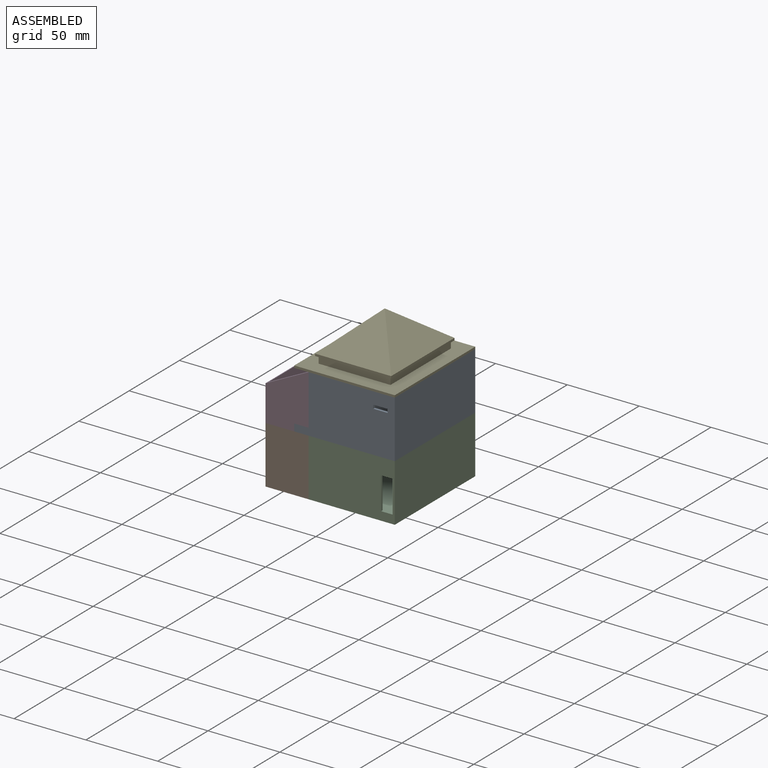
[diagram: assembled view]
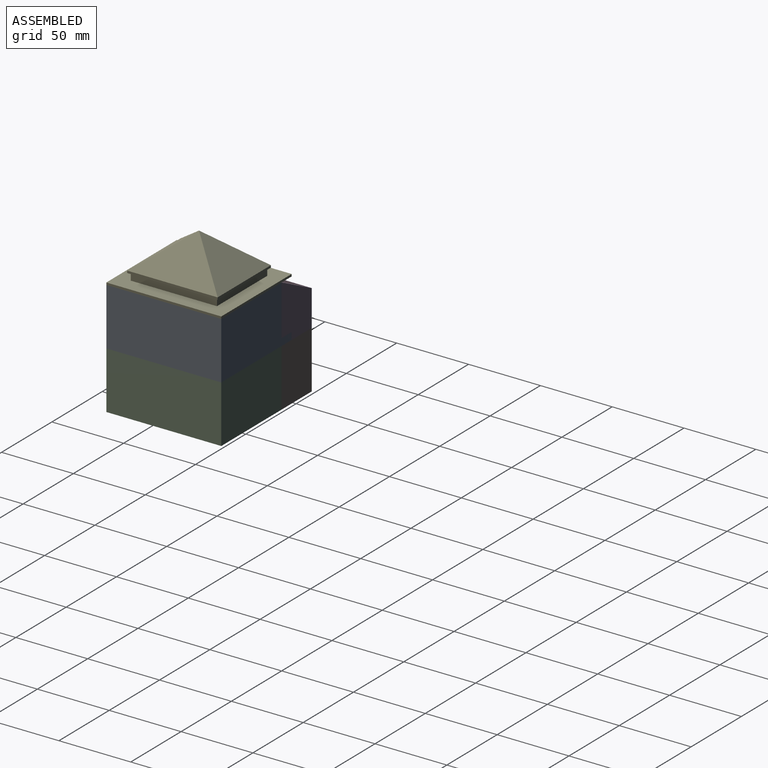
[diagram: assembled view, second angle]
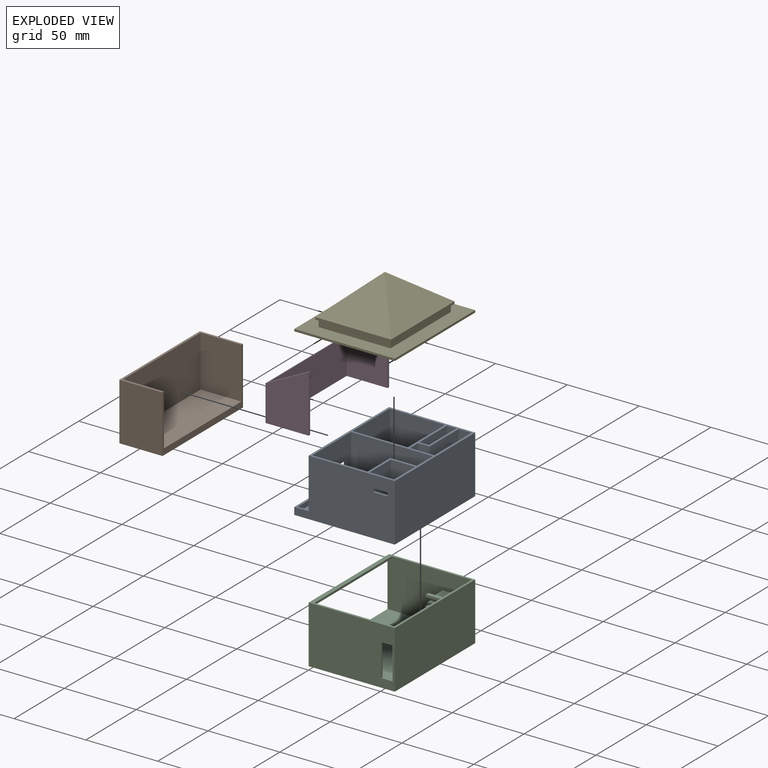
[diagram: exploded view]
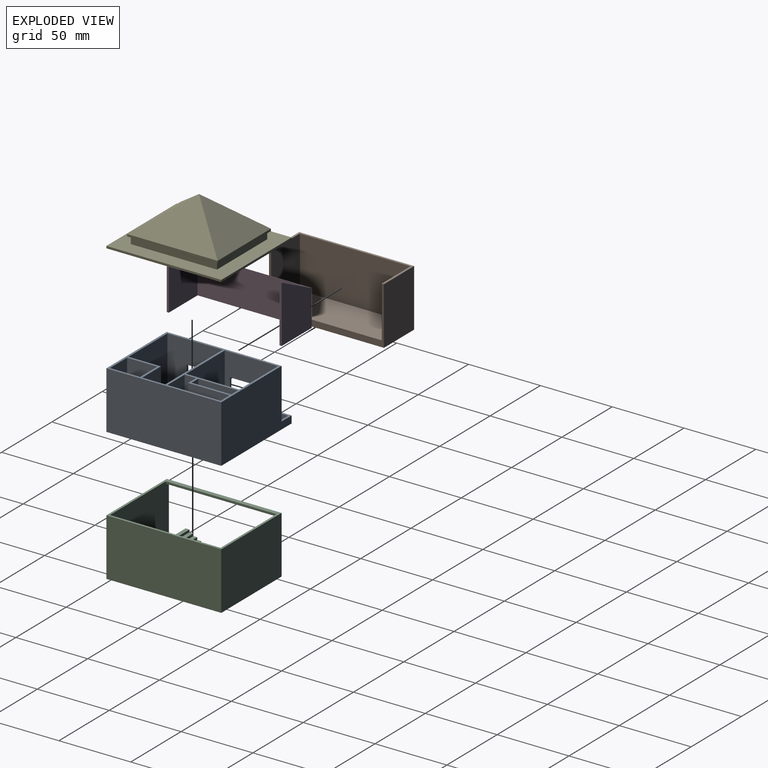
[diagram: exploded view, second angle]
ASSEMBLY  parts=5 mates=4
PART A: 60 faces, bbox 70x80x40 mm
  f0: plane 8.5x3.5mm, normal (0,1,0), area 29.8mm2, adj f2,f56,f57,f59
  f1: plane 8.5x3.5mm, normal (0,-1,0), area 29.8mm2, adj f2,f56,f57,f59
  f2: plane 80x38.5mm, normal (-1,0,0), area 2309.5mm2, adj f0,f1,f9,f19,f21,f41,f42,f43
  f3: plane 27.5x16mm, normal (1,0,0), area 440mm2, adj f5,f19,f30,f36
  f4: plane 40x17mm, normal (0,-1,0), area 440mm2, adj f6,f13,f19,f26,f53,f54
  f5: plane 28.5x8mm, normal (0,1,0), area 204mm2, adj f3,f15,f19,f36,f37,f55
  f6: plane 27.5x10mm, normal (1,0,0), area 275mm2, adj f4,f7,f13,f54
  f7: plane 10x8mm, normal (0,1,0), area 80mm2, adj f6,f13,f53,f54
  f8: plane 16x8mm, normal (1,0,0), area 128mm2, adj f16,f19,f38,f39
  f9: plane 70x40mm, normal (0,-1,0), area 2425mm2, adj f2,f13,f19,f20,f49,f50,f51,f52
  f10: plane 38.5x17mm, normal (0,1,0), area 629.5mm2, adj f19,f27,f28,f31,f49,f50,f51,f52
  f11: plane 38.5x38.5mm, normal (1,0,0), area 1102.2mm2, adj f17,f19,f22,f31,f45,f46,f47,f48
  f12: plane 38.5x37mm, normal (1,0,0), area 1044.5mm2, adj f19,f29,f30,f31,f41,f42,f43,f44
  f13: plane 80x70mm, normal (0,0,-1), area 5119mm2, adj f4,f6,f7,f9,f20,f21,f26,f40
  f14: plane 22.5x1.5mm, normal (1,0,0), area 33.8mm2, adj f17,f29,f31,f34
  f15: plane 38.5x37mm, normal (-1,0,0), area 900.7mm2, adj f5,f19,f29,f30,f31,f36,f37,f38
  f16: plane 38.5x17mm, normal (0,1,0), area 474.5mm2, adj f8,f19,f26,f31,f34,f35
  f17: plane 57x38.5mm, normal (0,-1,0), area 2014.5mm2, adj f11,f14,f19,f25,f31,f34,f35
  f18: plane 38.5x17mm, normal (0,-1,0), area 474.5mm2, adj f19,f27,f28,f31,f32,f33
  f19: plane 80x60mm, normal (0,0,1), area 664.5mm2, adj f2,f3,f4,f5,f8,f9,f10,f11
  f20: plane 80x40mm, normal (1,0,0), area 3200mm2, adj f9,f13,f19,f21
  f21: plane 70x40mm, normal (0,1,0), area 2450mm2, adj f2,f13,f19,f20,f56,f58
  f22: plane 38.5x38.5mm, normal (0,1,0), area 1482.2mm2, adj f11,f19,f23,f31
  f23: plane 38.5x22.5mm, normal (-1,0,0), area 866.2mm2, adj f19,f22,f24,f31
  f24: plane 38.5x18.5mm, normal (0,1,0), area 532.3mm2, adj f19,f23,f25,f27,f31,f32,f33
  f25: plane 38.5x16mm, normal (-1,0,0), area 616mm2, adj f17,f19,f24,f31
  f26: plane 40x37mm, normal (-1,0,0), area 1468mm2, adj f4,f13,f16,f19,f31,f40
  f27: plane 38.5x22.5mm, normal (1,0,0), area 842.2mm2, adj f10,f18,f19,f24,f31,f32
  f28: plane 38.5x21mm, normal (-1,0,0), area 808.5mm2, adj f10,f18,f19,f31
  f29: plane 40x38.5mm, normal (0,1,0), area 1516mm2, adj f12,f14,f15,f19,f31,f38
  f30: plane 46.5x38.5mm, normal (0,-1,0), area 1686.2mm2, adj f3,f12,f15,f19,f31,f36,f37,f55
  f31: plane 77x57mm, normal (0,0,1), area 3731.7mm2, adj f10,f11,f12,f14,f15,f16,f17,f18
  f32: plane 8x1.5mm, normal (0,0,-1), area 12mm2, adj f18,f24,f27,f33
  f33: plane 22.5x1.5mm, normal (-1,0,0), area 33.8mm2, adj f18,f24,f31,f32
  f34: plane 8x1.5mm, normal (0,0,-1), area 12mm2, adj f14,f16,f17,f35
  f35: plane 22.5x1.5mm, normal (-1,0,0), area 33.8mm2, adj f16,f17,f31,f34
  f36: plane 27.5x1.5mm, normal (0,0,-1), area 41.3mm2, adj f3,f5,f15,f30
  f37: plane 27.5x8mm, normal (0,0,1), area 220mm2, adj f5,f15,f30,f55
  f38: plane 8x1.5mm, normal (0,0,-1), area 12mm2, adj f8,f15,f29,f39
  f39: plane 38.5x9.5mm, normal (0,-1,0), area 341.8mm2, adj f8,f15,f19,f31,f38,f53
  f40: plane 9x1.5mm, normal (0,1,0), area 13.5mm2, adj f13,f26,f31,f53
  f41: plane 20x1.5mm, normal (0,0,-1), area 30mm2, adj f2,f12,f42,f44
  f42: plane 19x1.5mm, normal (0,-1,0), area 28.5mm2, adj f2,f12,f41,f43
  f43: plane 20x1.5mm, normal (0,0,1), area 30mm2, adj f2,f12,f42,f44
  f44: plane 19x1.5mm, normal (0,1,0), area 28.5mm2, adj f2,f12,f41,f43
  f45: plane 20x1.5mm, normal (0,0,-1), area 30mm2, adj f2,f11,f46,f48
  f46: plane 19x1.5mm, normal (0,-1,0), area 28.5mm2, adj f2,f11,f45,f47
  f47: plane 20x1.5mm, normal (0,0,1), area 30mm2, adj f2,f11,f46,f48
  f48: plane 19x1.5mm, normal (0,1,0), area 28.5mm2, adj f2,f11,f45,f47
  f49: plane 10x1.5mm, normal (0,0,-1), area 15mm2, adj f9,f10,f50,f52
  f50: plane 2.5x1.5mm, normal (1,0,0), area 3.7mm2, adj f9,f10,f49,f51
  f51: plane 10x1.5mm, normal (0,0,1), area 15mm2, adj f9,f10,f50,f52
  f52: plane 2.5x1.5mm, normal (-1,0,0), area 3.7mm2, adj f9,f10,f49,f51
  f53: plane 40x29mm, normal (1,0,0), area 885mm2, adj f4,f7,f13,f19,f39,f40,f54
  f54: plane 27.5x8mm, normal (0,0,-1), area 220mm2, adj f4,f6,f7,f53
  f55: plane 28.5x27.5mm, normal (-1,0,0), area 783.8mm2, adj f5,f19,f30,f37
  f56: plane 80x10mm, normal (0,0,1), area 145.5mm2, adj f0,f1,f2,f9,f21,f58,f59
  f57: plane 77x8.5mm, normal (0,0,1), area 654.5mm2, adj f0,f1,f2,f59
  f58: plane 80x5mm, normal (-1,0,0), area 400mm2, adj f9,f13,f21,f56
  f59: plane 77x3.5mm, normal (1,0,0), area 269.5mm2, adj f0,f1,f56,f57
PART B: 10 faces, bbox 30x80x40 mm
  f0: plane 77x28.5mm, normal (0,0,1), area 2194.5mm2, adj f2,f6,f7,f8
  f1: plane 40x30mm, normal (0,-1,0), area 1200mm2, adj f2,f4,f5,f9
  f2: plane 80x40mm, normal (1,0,0), area 451.1mm2, adj f0,f1,f3,f5,f6,f7,f9
  f3: plane 40x30mm, normal (0,1,0), area 1200mm2, adj f2,f4,f5,f9
  f4: plane 80x40mm, normal (-1,0,0), area 3200mm2, adj f1,f3,f5,f9
  f5: plane 80x30mm, normal (0,0,-1), area 2400mm2, adj f1,f2,f3,f4
  f6: plane 35.7x28.5mm, normal (0,-1,0), area 1017.4mm2, adj f0,f2,f8,f9
  f7: plane 35.7x28.5mm, normal (0,1,0), area 1017.4mm2, adj f0,f2,f8,f9
  f8: plane 77x35.7mm, normal (1,0,0), area 2748.9mm2, adj f0,f6,f7,f9
  f9: plane 80x30mm, normal (0,0,1), area 205.5mm2, adj f1,f2,f3,f4,f6,f7,f8
PART C: 61 faces, bbox 60x80x40 mm
  f0: plane 60x40mm, normal (0,-1,0), area 2220mm2, adj f6,f7,f9,f10,f11,f12,f59,f60
  f1: plane 20x12.5mm, normal (0,0,-1), area 223mm2, adj f3,f11,f16,f32,f33,f34
  f2: plane 18.9x13.6mm, normal (-1,0,0), area 48.2mm2, adj f9,f16,f17,f18,f19,f20,f21,f22
  f3: plane 58.5x34mm, normal (0,-1,0), area 1950.5mm2, adj f1,f4,f6,f9,f11,f12,f13,f14
  f4: plane 28.7x11.9mm, normal (-1,0,0), area 245.1mm2, adj f3,f9,f15,f18,f19,f20,f21,f22
  f5: plane 58.5x34mm, normal (0,1,0), area 1804.5mm2, adj f6,f9,f11,f12,f13,f14,f59,f60
  f6: plane 80x40mm, normal (-1,0,0), area 697.5mm2, adj f0,f3,f5,f8,f9,f10,f12,f13
  f7: plane 80x40mm, normal (1,0,0), area 3200mm2, adj f0,f8,f9,f10
  f8: plane 60x40mm, normal (0,1,0), area 2400mm2, adj f6,f7,f9,f10
  f9: plane 80x60mm, normal (0,0,1), area 553.5mm2, adj f0,f2,f3,f4,f5,f6,f7,f8
  f10: plane 80x60mm, normal (0,0,-1), area 4800mm2, adj f0,f6,f7,f8
  f11: plane 78.5x34mm, normal (-1,0,0), area 2337.2mm2, adj f0,f1,f3,f5,f9,f12,f16,f17
  f12: plane 78.5x58.5mm, normal (0,0,1), area 4489.5mm2, adj f0,f3,f5,f6,f11,f32,f33,f34
  f13: plane 77x3mm, normal (0,0,-1), area 231mm2, adj f3,f5,f6,f14
  f14: plane 77x1.5mm, normal (1,0,0), area 115.5mm2, adj f3,f5,f9,f13
  f15: plane 20x12.5mm, normal (0,0,1), area 250mm2, adj f3,f4,f30,f31,f32
  f16: plane 18.9x11.9mm, normal (0,-0.53,-0.85), area 223.3mm2, adj f1,f2,f11,f17
  f17: plane 10x1.7mm, normal (0,-1,0), area 17mm2, adj f2,f9,f11,f16
  f18: plane 10x1.7mm, normal (0,1,0), area 17mm2, adj f2,f4,f9,f19
  f19: plane 10x2.7mm, normal (0,0,1), area 27mm2, adj f2,f4,f18,f20
  f20: plane 10x1.7mm, normal (0,1,0), area 17mm2, adj f2,f4,f19,f21
  f21: plane 10x2.7mm, normal (0,0,1), area 27mm2, adj f2,f4,f20,f22
  f22: plane 10x1.7mm, normal (0,1,0), area 17mm2, adj f2,f4,f21,f23
  f23: plane 10x2.7mm, normal (0,0,1), area 27mm2, adj f2,f4,f22,f24
  f24: plane 10x1.7mm, normal (0,1,0), area 17mm2, adj f2,f4,f23,f25
  f25: plane 10x2.7mm, normal (0,0,1), area 27mm2, adj f2,f4,f24,f26
  f26: plane 10x1.7mm, normal (0,1,0), area 17mm2, adj f2,f4,f25,f27
  f27: plane 10x2.7mm, normal (0,0,1), area 27mm2, adj f2,f4,f26,f28
  f28: plane 10x1.7mm, normal (0,1,0), area 17mm2, adj f2,f4,f27,f29
  f29: plane 10x2.7mm, normal (0,0,1), area 27mm2, adj f2,f4,f28,f30
  f30: plane 10x1.7mm, normal (0,1,0), area 17mm2, adj f2,f4,f15,f29
  f31: plane 10x1.7mm, normal (0,-1,0), area 17mm2, adj f2,f15,f32,f56
  f32: plane 44.9x22.1mm, normal (-1,0,0), area 103.9mm2, adj f1,f3,f12,f15,f31,f34,f35,f36
  f33: plane 35.1x20.4mm, normal (1,0,0), area 82.6mm2, adj f1,f12,f34,f35,f36,f37,f38,f39
  f34: plane 32.4x20.4mm, normal (0,0.53,-0.85), area 382.9mm2, adj f1,f12,f32,f33
  f35: plane 10x1.7mm, normal (0,-1,0), area 17mm2, adj f12,f32,f33,f36
  f36: plane 10x2.7mm, normal (0,0,1), area 27mm2, adj f32,f33,f35,f37
  f37: plane 10x1.7mm, normal (0,-1,0), area 17mm2, adj f32,f33,f36,f38
  f38: plane 10x2.7mm, normal (0,0,1), area 27mm2, adj f32,f33,f37,f39
  f39: plane 10x1.7mm, normal (0,-1,0), area 17mm2, adj f32,f33,f38,f40
  f40: plane 10x2.7mm, normal (0,0,1), area 27mm2, adj f32,f33,f39,f41
  f41: plane 10x1.7mm, normal (0,-1,0), area 17mm2, adj f32,f33,f40,f42
  f42: plane 10x2.7mm, normal (0,0,1), area 27mm2, adj f32,f33,f41,f43
  f43: plane 10x1.7mm, normal (0,-1,0), area 17mm2, adj f32,f33,f42,f44
  f44: plane 10x2.7mm, normal (0,0,1), area 27mm2, adj f32,f33,f43,f45
  f45: plane 10x1.7mm, normal (0,-1,0), area 17mm2, adj f32,f33,f44,f46
  f46: plane 10x2.7mm, normal (0,0,1), area 27mm2, adj f32,f33,f45,f47
  f47: plane 10x1.7mm, normal (0,-1,0), area 17mm2, adj f32,f33,f46,f48
  f48: plane 10x2.7mm, normal (0,0,1), area 27mm2, adj f32,f33,f47,f49
  f49: plane 10x1.7mm, normal (0,-1,0), area 17mm2, adj f32,f33,f48,f50
  f50: plane 10x2.7mm, normal (0,0,1), area 27mm2, adj f32,f33,f49,f51
  f51: plane 10x1.7mm, normal (0,-1,0), area 17mm2, adj f32,f33,f50,f52
  f52: plane 10x2.7mm, normal (0,0,1), area 27mm2, adj f32,f33,f51,f53
  f53: plane 10x1.7mm, normal (0,-1,0), area 17mm2, adj f32,f33,f52,f54
  f54: plane 10x2.7mm, normal (0,0,1), area 27mm2, adj f32,f33,f53,f55
  f55: plane 10x1.7mm, normal (0,-1,0), area 17mm2, adj f32,f33,f54,f57
  f56: plane 10x2.7mm, normal (0,0,1), area 27mm2, adj f31,f32,f33,f58
  f57: plane 10x2.7mm, normal (0,0,1), area 27mm2, adj f32,f33,f55,f58
  f58: plane 10x1.7mm, normal (0,-1,0), area 17mm2, adj f32,f33,f56,f57
  f59: plane 8x1.5mm, normal (0,0,-1), area 12mm2, adj f0,f5,f11,f60
  f60: plane 22.5x1.5mm, normal (1,0,0), area 33.8mm2, adj f0,f5,f12,f59
PART D: 10 faces, bbox 30x80x40 mm
  f0: plane 40x30mm, normal (0,-1,0), area 975mm2, adj f5,f6,f8,f9
  f1: plane 40x28.5mm, normal (0,1,0), area 936.9mm2, adj f2,f6,f8,f9
  f2: plane 77x25.75mm, normal (1,0,0), area 1982.7mm2, adj f1,f3,f8,f9
  f3: plane 40x28.5mm, normal (0,-1,0), area 936.9mm2, adj f2,f7,f8,f9
  f4: plane 40x30mm, normal (0,1,0), area 975mm2, adj f5,f7,f8,f9
  f5: plane 80x25mm, normal (-1,0,0), area 2000mm2, adj f0,f4,f8,f9
  f6: plane 40x1.5mm, normal (1,0,0), area 60mm2, adj f0,f1,f8,f9
  f7: plane 40x1.5mm, normal (1,0,0), area 60mm2, adj f3,f4,f8,f9
  f8: plane 80x30mm, normal (0,0,-1), area 205.5mm2, adj f0,f1,f2,f3,f4,f5,f6,f7
  f9: plane 80x30mm, normal (-0.45,0,0.89), area 229.8mm2, adj f0,f1,f2,f3,f4,f5,f6,f7
PART E: 19 faces, bbox 70x80x31.5 mm
  f0: plane 53x1.5mm, normal (0,1,0), area 79.5mm2, adj f1,f12,f14,f18
  f1: plane 63x1.5mm, normal (-1,0,0), area 94.5mm2, adj f0,f12,f13,f16
  f2: plane 80x1.5mm, normal (-1,0,0), area 120mm2, adj f3,f5,f6,f7
  f3: plane 70x1.5mm, normal (0,-1,0), area 105mm2, adj f2,f4,f6,f7
  f4: plane 80x1.5mm, normal (1,0,0), area 120mm2, adj f3,f5,f6,f7
  f5: plane 70x1.5mm, normal (0,1,0), area 105mm2, adj f2,f4,f6,f7
  f6: plane 80x70mm, normal (0,0,1), area 2600mm2, adj f2,f3,f4,f5,f8,f9,f10,f11
  f7: plane 80x70mm, normal (0,0,-1), area 5600mm2, adj f2,f3,f4,f5
  f8: plane 60x5mm, normal (-1,0,0), area 300mm2, adj f6,f9,f11,f12
  f9: plane 50x5mm, normal (0,-1,0), area 250mm2, adj f6,f8,f10,f12
  f10: plane 60x5mm, normal (1,0,0), area 300mm2, adj f6,f9,f11,f12
  f11: plane 50x5mm, normal (0,1,0), area 250mm2, adj f6,f8,f10,f12
  f12: plane 63x53mm, normal (0,0,-1), area 339mm2, adj f0,f1,f8,f9,f10,f11,f13,f14
  f13: plane 53x1.5mm, normal (0,-1,0), area 79.5mm2, adj f1,f12,f14,f17
  f14: plane 63x1.5mm, normal (1,0,0), area 94.5mm2, adj f0,f12,f13,f15
  f15: plane 63x26.5mm, normal (0.66,0,0.75), area 1115.7mm2, adj f14,f17,f18
  f16: plane 63x26.5mm, normal (-0.66,0,0.75), area 1115.7mm2, adj f1,f17,f18
  f17: plane 53x31.5mm, normal (0,-0.6,0.8), area 1041.5mm2, adj f13,f15,f16
  f18: plane 53x31.5mm, normal (0,0.6,0.8), area 1041.5mm2, adj f0,f15,f16
PLACE A t=(0,0,40)mm
PLACE B at identity
PLACE C at identity
PLACE D t=(0,0,40)mm
PLACE E t=(-10,0,80)mm
MATE fastened E.f4 <-> A.f20  axis (1,0,0) through (60,80,80)mm
MATE fastened A.f13 <-> C.f9  axis (0,0,-1) through (60,80,40)mm
MATE fastened D.f0 <-> A.f9  axis (0,-1,0) through (0,0,80)mm
MATE fastened B.f1 <-> C.f0  axis (0,-1,0) through (0,0,40)mm
